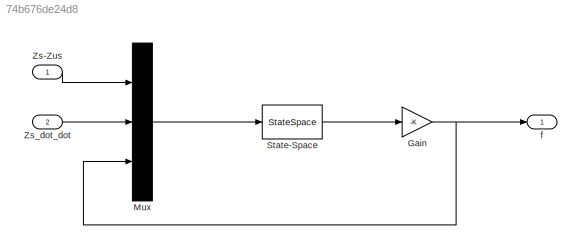
MODEL slx_74b676de24d8
KIND model
CONFIG AbsTol = auto
CONFIG EnableMultiTasking = off
CONFIG FixedStep = 0.001
CONFIG MaxStep = auto
CONFIG MinStep = auto
CONFIG RelTol = 1e-3
CONFIG SampleTimeConstraint = Unconstrained
CONFIG SolverName = ode1
CONFIG StartTime = 0.0
CONFIG StopTime = 10.0
BLOCK [Gain] Gain
  Gain = -K
  Multiplication = Matrix(K*u)
BLOCK [Mux] Mux
  DisplayOption = bar
  Inputs = 3
  Ports = [3, 1]
BLOCK [StateSpace] State-Space
  A = A_observer
  B = B_observer
  C = [1 0 0 0; 0 1 0 0; 0 0 1 0; 0 0 0 1]
  D = [0 0 0 ;  0 0 0;  0 0 0; 0 0 0]
  InitialCondition = 0
  Ports = [1, 1]
BLOCK [Inport] Zs-Zus
BLOCK [Inport] Zs_dot_dot
  Port = 2
BLOCK [Outport] f
  VectorParamsAs1DForOutWhenUnconnected = off
NET Gain:1 -> Mux:3, f:1
LINE Mux:1 -> State-Space:1
LINE State-Space:1 -> Gain:1
LINE Zs-Zus:1 -> Mux:1
LINE Zs_dot_dot:1 -> Mux:2
note: NET lines group one-source signal fan-out (src -> all destinations, sorted); 1:1 wires keep LINE
